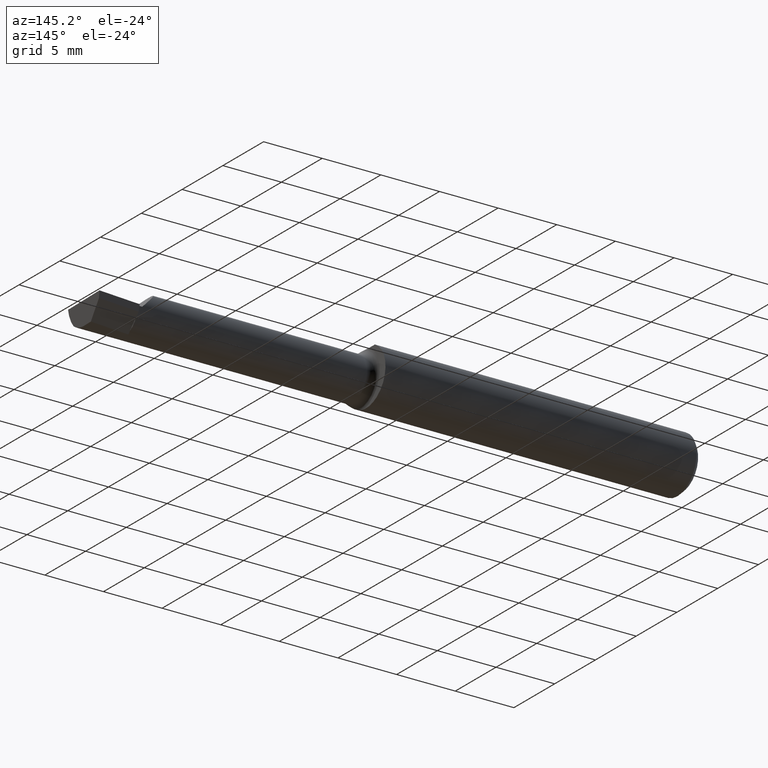
[diagram: clean part render]
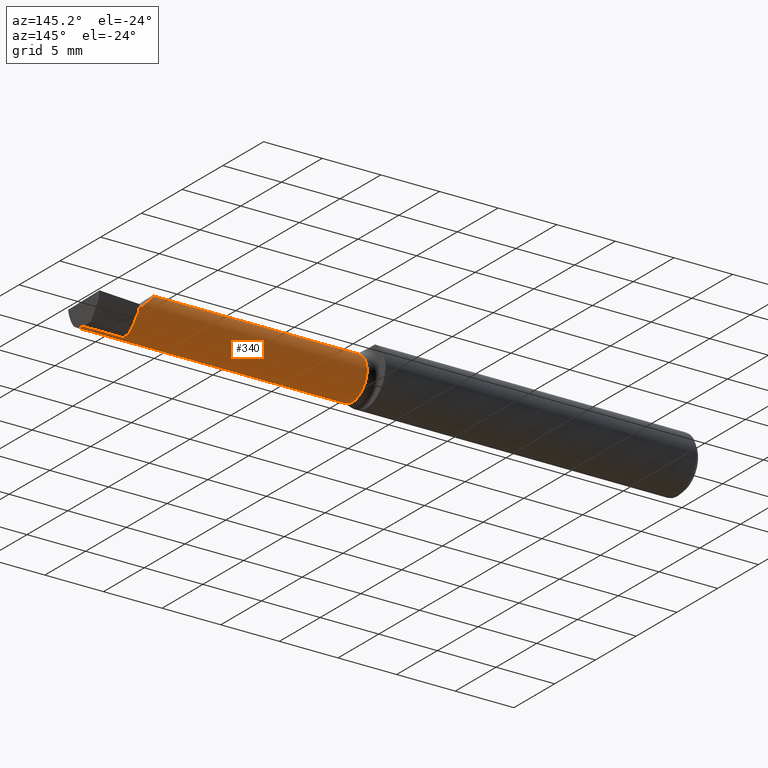
[diagram: same view with one face highlighted and labeled with its STEP entity id]
A machine part, auxiliary view. The second image highlights one B-rep face of the part: STEP entity #340.
In plain terms, the highlighted cylindrical surface (edge-blend (fillet) strip) has radius 1.8034 mm, axis along (-1, -0, -0).
Its self-contained STEP definition (entity closure, byte-faithful):
#6 = CIRCLE ( 'NONE', #525, 0.07100000000000010469 ) ;
#7 = CARTESIAN_POINT ( 'NONE',  ( 1.840000000000000080, 0.04039999999999985963, 1.959434878635762025E-17 ) ) ;
#15 = DIRECTION ( 'NONE',  ( -1.000000000000000000, -4.268512490100411279E-18, -0.000000000000000000 ) ) ;
#25 = CARTESIAN_POINT ( 'NONE',  ( 1.084999999999999964, -0.03060000000000022771, 0.000000000000000000 ) ) ;
#28 = VECTOR ( 'NONE', #65, 39.37007874015748143 ) ;
#29 = DIRECTION ( 'NONE',  ( -1.000000000000000000, -4.268512490100411279E-18, -0.000000000000000000 ) ) ;
#45 = CARTESIAN_POINT ( 'NONE',  ( -3.030643867965639230E-19, 0.04039999999999993596, 1.030335658007946046E-15 ) ) ;
#49 = EDGE_CURVE ( 'NONE', #547, #587, #342, .T. ) ;
#61 = CARTESIAN_POINT ( 'NONE',  ( 1.084999999999999964, -0.07608366013071805878, -0.05451822320209422784 ) ) ;
#65 = DIRECTION ( 'NONE',  ( -1.000000000000000000, 5.691349986800549142E-18, -0.000000000000000000 ) ) ;
#89 = CARTESIAN_POINT ( 'NONE',  ( 1.854999999999999982, 0.003039038829300866676, -0.06252531540616805550 ) ) ;
#101 = CARTESIAN_POINT ( 'NONE',  ( 1.785481776797905207, -0.07608366013071837797, 0.05451822320209400580 ) ) ;
#105 = CARTESIAN_POINT ( 'NONE',  ( 1.770398118553868860, 0.04039999999999994984, 0.06960188144613040084 ) ) ;
#106 = DIRECTION ( 'NONE',  ( 1.000000000000000000, 4.268512490100411279E-18, 0.000000000000000000 ) ) ;
#111 = CARTESIAN_POINT ( 'NONE',  ( 1.989625015145392917, -0.07608366013071823919, -0.05451822320209416539 ) ) ;
#114 = CARTESIAN_POINT ( 'NONE',  ( 1.988351831874612508, -0.04739579569646898416, -0.07100000000000017408 ) ) ;
#121 = DIRECTION ( 'NONE',  ( -1.000000000000000000, -4.268512490100411279E-18, -0.000000000000000000 ) ) ;
#139 = LINE ( 'NONE', #297, #330 ) ;
#154 = ORIENTED_EDGE ( 'NONE', *, *, #372, .T. ) ;
#170 = AXIS2_PLACEMENT_3D ( 'NONE', #550, #306, #319 ) ;
#192 = VERTEX_POINT ( 'NONE', #596 ) ;
#197 = EDGE_CURVE ( 'NONE', #600, #361, #495, .T. ) ;
#200 = EDGE_LOOP ( 'NONE', ( #424, #316, #288, #333, #276, #528, #154, #512, #477, #407 ) ) ;
#214 = DIRECTION ( 'NONE',  ( 0.000000000000000000, -1.000000000000000000, 0.000000000000000000 ) ) ;
#221 = DIRECTION ( 'NONE',  ( 4.268512490100411279E-18, -1.000000000000000000, 0.000000000000000000 ) ) ;
#229 = CARTESIAN_POINT ( 'NONE',  ( 1.854999999999999982, -0.03060000000000022424, 0.000000000000000000 ) ) ;
#250 = EDGE_CURVE ( 'NONE', #460, #361, #536, .T. ) ;
#259 = EDGE_CURVE ( 'NONE', #600, #524, #592, .T. ) ;
#273 = CARTESIAN_POINT ( 'NONE',  ( 1.785481776797905207, -0.07608366013071837797, 0.05451822320209400580 ) ) ;
#275 = CARTESIAN_POINT ( 'NONE',  ( 1.988791645263412011, -0.03060000000000022424, -0.07100000000000021572 ) ) ;
#276 = ORIENTED_EDGE ( 'NONE', *, *, #49, .T. ) ;
#284 = CARTESIAN_POINT ( 'NONE',  ( 1.469999999999999973, -0.07608366013071823919, 0.05451822320209416539 ) ) ;
#288 = ORIENTED_EDGE ( 'NONE', *, *, #358, .T. ) ;
#291 = EDGE_CURVE ( 'NONE', #547, #574, #6, .T. ) ;
#297 = CARTESIAN_POINT ( 'NONE',  ( 1.469999999999999973, -0.07608366013071823919, -0.05451822320209416539 ) ) ;
#299 = AXIS2_PLACEMENT_3D ( 'NONE', #565, #29, #221 ) ;
#306 = DIRECTION ( 'NONE',  ( 1.000000000000000000, 4.268512490100411279E-18, 0.000000000000000000 ) ) ;
#313 = FACE_OUTER_BOUND ( 'NONE', #200, .T. ) ;
#315 = CYLINDRICAL_SURFACE ( 'NONE', #299, 0.07100000000000017408 ) ;
#316 = ORIENTED_EDGE ( 'NONE', *, *, #259, .T. ) ;
#319 = DIRECTION ( 'NONE',  ( 0.000000000000000000, -1.000000000000000000, 0.000000000000000000 ) ) ;
#322 = VERTEX_POINT ( 'NONE', #618 ) ;
#323 = CARTESIAN_POINT ( 'NONE',  ( 1.854999999999999982, 0.03291555154404718353, -0.03172971339384394324 ) ) ;
#324 = DIRECTION ( 'NONE',  ( -1.000000000000000000, -4.268512490100411279E-18, -0.000000000000000000 ) ) ;
#327 = CARTESIAN_POINT ( 'NONE',  ( 1.854999999999999982, -0.03060000000000022424, -0.07100000000000021572 ) ) ;
#330 = VECTOR ( 'NONE', #588, 39.37007874015748143 ) ;
#333 = ORIENTED_EDGE ( 'NONE', *, *, #291, .F. ) ;
#335 = DIRECTION ( 'NONE',  ( 1.000000000000000000, 4.268512490100411279E-18, 0.000000000000000000 ) ) ;
#336 = CIRCLE ( 'NONE', #170, 0.07100000000000017408 ) ;
#340 = ADVANCED_FACE ( 'NONE', ( #313 ), #315, .T. ) ;
#342 = LINE ( 'NONE', #284, #489 ) ;
#344 = CARTESIAN_POINT ( 'NONE',  ( 1.740893772288689023, -0.02263899945514353737, 0.09910622771130987718 ) ) ;
#346 =( BOUNDED_CURVE ( )  B_SPLINE_CURVE ( 3, ( #101, #344, #105, #7 ),
 .UNSPECIFIED., .F., .T. ) 
 B_SPLINE_CURVE_WITH_KNOTS ( ( 4, 4 ),
 ( 5.587886473277670518, 7.853981633974482790 ),
 .UNSPECIFIED. ) 
 CURVE ( )  GEOMETRIC_REPRESENTATION_ITEM ( )  RATIONAL_B_SPLINE_CURVE ( ( 1.000000000000000000, 0.6159343746860722613, 0.6159343746860722613, 1.000000000000000000 ) ) 
 REPRESENTATION_ITEM ( '' )  );
#358 = EDGE_CURVE ( 'NONE', #524, #574, #139, .T. ) ;
#361 = VERTEX_POINT ( 'NONE', #327 ) ;
#372 = EDGE_CURVE ( 'NONE', #322, #192, #573, .T. ) ;
#378 = AXIS2_PLACEMENT_3D ( 'NONE', #510, #15, #214 ) ;
#386 = VECTOR ( 'NONE', #335, 39.37007874015748143 ) ;
#407 = ORIENTED_EDGE ( 'NONE', *, *, #250, .T. ) ;
#416 = DIRECTION ( 'NONE',  ( 0.000000000000000000, -1.000000000000000000, 0.000000000000000000 ) ) ;
#424 = ORIENTED_EDGE ( 'NONE', *, *, #197, .F. ) ;
#440 = EDGE_CURVE ( 'NONE', #587, #322, #346, .T. ) ;
#441 = AXIS2_PLACEMENT_3D ( 'NONE', #229, #121, #520 ) ;
#451 = CARTESIAN_POINT ( 'NONE',  ( 1.988791645263412011, -0.03060000000000022424, -0.07100000000000021572 ) ) ;
#460 = VERTEX_POINT ( 'NONE', #89 ) ;
#463 = CARTESIAN_POINT ( 'NONE',  ( 1.988641161029047755, -0.06318680184005832923, -0.06527786071030766690 ) ) ;
#477 = ORIENTED_EDGE ( 'NONE', *, *, #613, .F. ) ;
#489 = VECTOR ( 'NONE', #106, 39.37007874015748143 ) ;
#495 = LINE ( 'NONE', #549, #28 ) ;
#510 = CARTESIAN_POINT ( 'NONE',  ( 1.854999999999999982, -0.03060000000000022424, 0.000000000000000000 ) ) ;
#512 = ORIENTED_EDGE ( 'NONE', *, *, #513, .T. ) ;
#513 = EDGE_CURVE ( 'NONE', #192, #623, #611, .T. ) ;
#515 = CARTESIAN_POINT ( 'NONE',  ( 1.989625015145392917, -0.07608366013071823919, -0.05451822320209416539 ) ) ;
#520 = DIRECTION ( 'NONE',  ( 0.000000000000000000, -1.000000000000000000, 0.000000000000000000 ) ) ;
#524 = VERTEX_POINT ( 'NONE', #111 ) ;
#525 = AXIS2_PLACEMENT_3D ( 'NONE', #25, #324, #416 ) ;
#528 = ORIENTED_EDGE ( 'NONE', *, *, #440, .T. ) ;
#536 = CIRCLE ( 'NONE', #441, 0.07100000000000021572 ) ;
#547 = VERTEX_POINT ( 'NONE', #558 ) ;
#549 = CARTESIAN_POINT ( 'NONE',  ( 2.000000000000000000, -0.03060000000000022424, -0.07100000000000021572 ) ) ;
#550 = CARTESIAN_POINT ( 'NONE',  ( 1.854999999999999982, -0.03060000000000022424, 0.000000000000000000 ) ) ;
#558 = CARTESIAN_POINT ( 'NONE',  ( 1.084999999999999964, -0.07608366013071805878, 0.05451822320209422784 ) ) ;
#565 = CARTESIAN_POINT ( 'NONE',  ( 0.000000000000000000, -0.03060000000000023118, 0.000000000000000000 ) ) ;
#573 = LINE ( 'NONE', #45, #386 ) ;
#574 = VERTEX_POINT ( 'NONE', #61 ) ;
#587 = VERTEX_POINT ( 'NONE', #273 ) ;
#588 = DIRECTION ( 'NONE',  ( -1.000000000000000000, -4.268512490100411279E-18, -0.000000000000000000 ) ) ;
#592 =( BOUNDED_CURVE ( )  B_SPLINE_CURVE ( 3, ( #275, #114, #463, #515 ),
 .UNSPECIFIED., .F., .T. ) 
 B_SPLINE_CURVE_WITH_KNOTS ( ( 4, 4 ),
 ( 6.073135862899447623, 6.768434696801360673 ),
 .UNSPECIFIED. ) 
 CURVE ( )  GEOMETRIC_REPRESENTATION_ITEM ( )  RATIONAL_B_SPLINE_CURVE ( ( 1.000000000000000000, 0.9601174178332940734, 0.9601174178332940734, 1.000000000000000000 ) ) 
 REPRESENTATION_ITEM ( '' )  );
#596 = CARTESIAN_POINT ( 'NONE',  ( 1.854999999999999982, 0.04039999999999999841, 1.030335658007946637E-15 ) ) ;
#600 = VERTEX_POINT ( 'NONE', #451 ) ;
#611 = CIRCLE ( 'NONE', #378, 0.07100000000000021572 ) ;
#613 = EDGE_CURVE ( 'NONE', #460, #623, #336, .T. ) ;
#618 = CARTESIAN_POINT ( 'NONE',  ( 1.840000000000000080, 0.04039999999999985963, 1.959434878635762025E-17 ) ) ;
#623 = VERTEX_POINT ( 'NONE', #323 ) ;